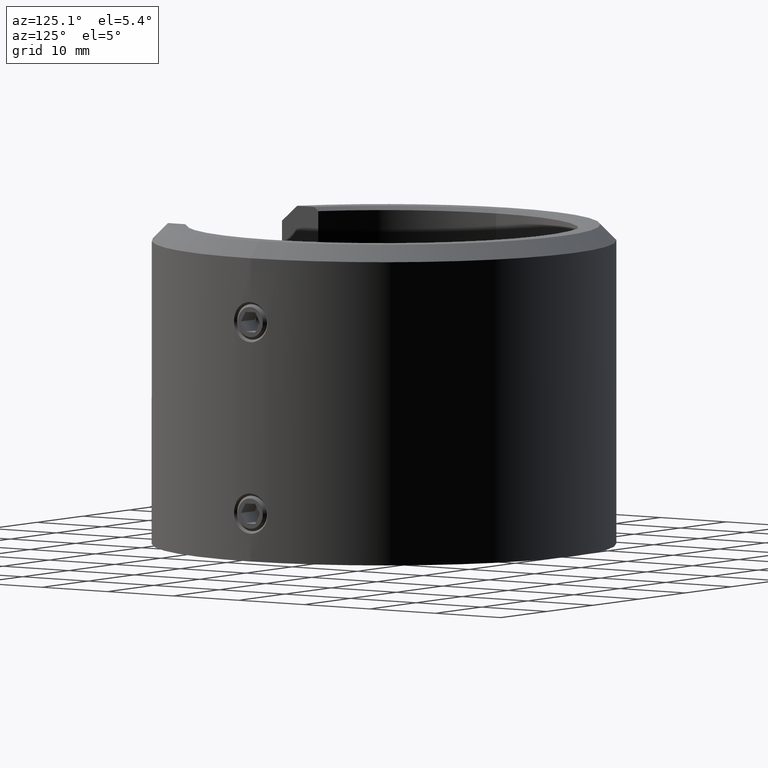
[diagram: clean part render]
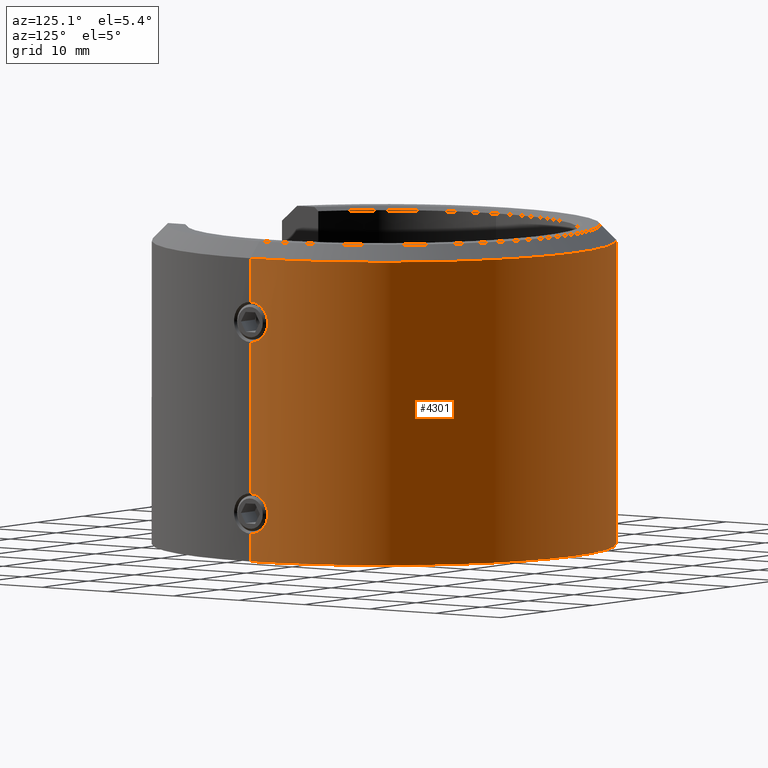
[diagram: same view with one face highlighted and labeled with its STEP entity id]
A machine part, auxiliary view. The second image highlights one B-rep face of the part: STEP entity #4301.
In plain terms, the highlighted cylindrical surface (partial cylindrical patch) has radius 29 mm, axis along (-0, -0, -1).
Its self-contained STEP definition (entity closure, byte-faithful):
#277 = CARTESIAN_POINT ( 'NONE',  ( 28.95070325850427700, 1.694372736664788500, -12.10099497149039000 ) ) ;
#555 = DIRECTION ( 'NONE',  ( 1.000000000000000000, 0.0000000000000000000, 0.0000000000000000000 ) ) ;
#907 = ORIENTED_EDGE ( 'NONE', *, *, #5354, .T. ) ;
#1137 = ORIENTED_EDGE ( 'NONE', *, *, #8854, .T. ) ;
#1820 = B_SPLINE_CURVE_WITH_KNOTS ( 'NONE', 3,
 ( #4042, #19688, #1968, #6363, #22014, #26396 ),
 .UNSPECIFIED., .F., .F.,
 ( 4, 2, 4 ),
 ( 0.4998276598278350600, 0.4999138299139175300, 0.5000000000000000000 ),
 .UNSPECIFIED. ) ;
#1968 = CARTESIAN_POINT ( 'NONE',  ( 28.99999998886649500, 0.0009279031094995492900, 12.52163524237534500 ) ) ;
#2059 = CARTESIAN_POINT ( 'NONE',  ( 28.97810411626767600, 1.137255901282815800, -11.73428274578081300 ) ) ;
#2152 = CARTESIAN_POINT ( 'NONE',  ( 28.91474639818237000, 2.224013585481232600, -15.26372302458311700 ) ) ;
#2157 = CARTESIAN_POINT ( 'NONE',  ( 28.99999994433047200, 0.001855826880077852900, -11.47836523612868500 ) ) ;
#2171 = LINE ( 'NONE', #28346, #8120 ) ;
#2249 = CARTESIAN_POINT ( 'NONE',  ( 28.97298592122339400, 1.289019628231691500, -16.20408996501297900 ) ) ;
#2442 = CARTESIAN_POINT ( 'NONE',  ( 28.91468287827641200, 2.224806800264385900, -12.73776894651643600 ) ) ;
#2543 = CARTESIAN_POINT ( 'NONE',  ( 28.88655163827969500, 2.562642083987400500, -14.16650311797027800 ) ) ;
#3641 = EDGE_CURVE ( 'NONE', #19587, #26552, #13382, .T. ) ;
#3822 = CARTESIAN_POINT ( 'NONE',  ( 28.97810411626428000, 1.137255901382695500, 12.26571725417542200 ) ) ;
#4042 = CARTESIAN_POINT ( 'NONE',  ( 28.99999999997066200, 2.646617529216354900E-012, 12.52163537449077100 ) ) ;
#4116 = CARTESIAN_POINT ( 'NONE',  ( 28.99996778157294500, 0.3370280696063509000, 12.52128354010413200 ) ) ;
#4219 = CARTESIAN_POINT ( 'NONE',  ( 29.00000000000000400, 0.3344056857971642300, 7.478364075911057900 ) ) ;
#4228 = DIRECTION ( 'NONE',  ( 0.0000000000000000000, 0.0000000000000000000, 1.000000000000000000 ) ) ;
#4301 = ADVANCED_FACE ( 'NONE', ( #11240 ), #16840, .T. ) ;
#4501 = CARTESIAN_POINT ( 'NONE',  ( 28.88654095897565800, 2.562762461078379200, -13.67044519030777600 ) ) ;
#4695 = CARTESIAN_POINT ( 'NONE',  ( 28.89259654719126000, 2.496928719873789500, -13.34235906666526500 ) ) ;
#5354 = EDGE_CURVE ( 'NONE', #8104, #5941, #9130, .T. ) ;
#5397 = EDGE_CURVE ( 'NONE', #27210, #8104, #17828, .T. ) ;
#5941 = VERTEX_POINT ( 'NONE', #10800 ) ;
#5971 = VERTEX_POINT ( 'NONE', #20178 ) ;
#6063 = CARTESIAN_POINT ( 'NONE',  ( 28.88655163827969800, 2.562642083987400900, 9.833496882027741700 ) ) ;
#6159 = CARTESIAN_POINT ( 'NONE',  ( 28.88804714963799100, 2.545940195306829700, 9.668456398321714200 ) ) ;
#6252 = CARTESIAN_POINT ( 'NONE',  ( 28.89800250750352000, 2.430966818281633300, 9.185162510636542900 ) ) ;
#6257 = VERTEX_POINT ( 'NONE', #12400 ) ;
#6293 = DIRECTION ( 'NONE',  ( -0.0000000000000000000, -0.0000000000000000000, -1.000000000000000000 ) ) ;
#6363 = CARTESIAN_POINT ( 'NONE',  ( 28.99999994433047200, 0.001855826880075615800, 12.52163476387133800 ) ) ;
#6730 = CARTESIAN_POINT ( 'NONE',  ( 28.99999999999998900, 0.3344056855532963600, -16.52163592408893300 ) ) ;
#6816 = CARTESIAN_POINT ( 'NONE',  ( 28.99999999999999600, 3.725607703343061400E-015, -16.52163540244526600 ) ) ;
#7003 = VECTOR ( 'NONE', #17155, 1000.000000000000000 ) ;
#7394 = ORIENTED_EDGE ( 'NONE', *, *, #28684, .T. ) ;
#7713 = VERTEX_POINT ( 'NONE', #26333 ) ;
#8104 = VERTEX_POINT ( 'NONE', #10433 ) ;
#8120 = VECTOR ( 'NONE', #14973, 1000.000000000000000 ) ;
#8187 = EDGE_CURVE ( 'NONE', #7713, #20552, #27198, .T. ) ;
#8312 = CARTESIAN_POINT ( 'NONE',  ( 28.88654095897565800, 2.562762461078379200, 10.32955480969619300 ) ) ;
#8396 = ORIENTED_EDGE ( 'NONE', *, *, #3641, .T. ) ;
#8406 = CARTESIAN_POINT ( 'NONE',  ( 28.92852626385320400, 2.036949656018110800, 8.460916172343452500 ) ) ;
#8793 = CARTESIAN_POINT ( 'NONE',  ( 28.92852626385637300, 2.036949655975246900, -15.53908382771963800 ) ) ;
#8854 = EDGE_CURVE ( 'NONE', #5971, #27210, #10622, .T. ) ;
#8889 = CARTESIAN_POINT ( 'NONE',  ( 29.00000000000000000, 3.551475717527324000E-015, 20.00000000000000000 ) ) ;
#9130 = CIRCLE ( 'NONE', #13333, 29.00000000000000000 ) ;
#10433 = CARTESIAN_POINT ( 'NONE',  ( 29.00000000000000000, 3.551475717527324000E-015, -20.00000000000000000 ) ) ;
#10622 = B_SPLINE_CURVE_WITH_KNOTS ( 'NONE', 3,
 ( #24174, #13084, #28654, #2059, #11191, #15850, #277, #20138, #24534, #2442, #18081, #4695, #4501, #2543, #15564, #26585, #22101, #13353, #2152, #8793, #13254, #17702, #2249, #19965, #6730, #6816 ),
 .UNSPECIFIED., .F., .F.,
 ( 4, 2, 2, 2, 2, 2, 2, 2, 2, 2, 2, 2, 4 ),
 ( 0.5000000000000000000, 0.5625000000000001100, 0.5937500000000002200, 0.6250000000000002200, 0.6562500000000003300, 0.6875000000000004400, 0.7500000000000002200, 0.7812500000000003300, 0.8125000000000004400, 0.8437500000000004400, 0.8750000000000004400, 0.9375000000000002200, 1.000000000000000000 ),
 .UNSPECIFIED. ) ;
#10719 = CARTESIAN_POINT ( 'NONE',  ( 28.99381238240432500, 0.6740327640921671700, 12.45499271122933600 ) ) ;
#10800 = CARTESIAN_POINT ( 'NONE',  ( -29.00000000000000000, 0.0000000000000000000, -20.00000000000000000 ) ) ;
#10928 = CARTESIAN_POINT ( 'NONE',  ( 28.99999999997066500, 2.633994630460776600E-012, -11.47836462550925600 ) ) ;
#10944 = DIRECTION ( 'NONE',  ( -0.0000000000000000000, -0.0000000000000000000, -1.000000000000000000 ) ) ;
#11191 = CARTESIAN_POINT ( 'NONE',  ( 28.97178799525163800, 1.286462123786927800, -11.81287434999528200 ) ) ;
#11240 = FACE_OUTER_BOUND ( 'NONE', #19797, .T. ) ;
#11375 = DIRECTION ( 'NONE',  ( -0.0000000000000000000, -0.0000000000000000000, -1.000000000000000000 ) ) ;
#12400 = CARTESIAN_POINT ( 'NONE',  ( 28.99999999997066500, 2.633994630460776600E-012, -11.47836462550925600 ) ) ;
#12629 = CARTESIAN_POINT ( 'NONE',  ( 0.0000000000000000000, 0.0000000000000000000, 20.00000000000000000 ) ) ;
#12783 = CARTESIAN_POINT ( 'NONE',  ( 28.89259654719180800, 2.496928719867046900, 10.65764093335671900 ) ) ;
#12880 = CARTESIAN_POINT ( 'NONE',  ( 28.95070325850256100, 1.694372736692226800, 11.89900502847962500 ) ) ;
#13075 = CARTESIAN_POINT ( 'NONE',  ( 28.92835916125378400, 2.039286023906310400, 11.53596375990405900 ) ) ;
#13084 = CARTESIAN_POINT ( 'NONE',  ( 28.99996778157294100, 0.3370280696065572900, -11.47871645988999100 ) ) ;
#13132 = AXIS2_PLACEMENT_3D ( 'NONE', #12629, #6293, #19219 ) ;
#13254 = CARTESIAN_POINT ( 'NONE',  ( 28.93601098192067400, 1.929061563449896400, -15.66811095088773500 ) ) ;
#13261 = VERTEX_POINT ( 'NONE', #24694 ) ;
#13333 = AXIS2_PLACEMENT_3D ( 'NONE', #26481, #4228, #15109 ) ;
#13353 = CARTESIAN_POINT ( 'NONE',  ( 28.90851580541707100, 2.302577365306048800, -15.11911433925701300 ) ) ;
#13382 = CIRCLE ( 'NONE', #24135, 29.00000000000000000 ) ;
#13616 = CARTESIAN_POINT ( 'NONE',  ( 28.99999986638995600, 0.002783771313339031800, -11.47836608530465900 ) ) ;
#13883 = DIRECTION ( 'NONE',  ( 0.0000000000000000000, 0.0000000000000000000, -1.000000000000000000 ) ) ;
#13953 = ORIENTED_EDGE ( 'NONE', *, *, #5397, .T. ) ;
#14087 = CARTESIAN_POINT ( 'NONE',  ( 29.00000000000000000, 3.551475717527324000E-015, 17.99999999999999300 ) ) ;
#14146 = ORIENTED_EDGE ( 'NONE', *, *, #14152, .F. ) ;
#14151 = LINE ( 'NONE', #19795, #16966 ) ;
#14152 = EDGE_CURVE ( 'NONE', #19587, #5941, #15022, .T. ) ;
#14973 = DIRECTION ( 'NONE',  ( -0.0000000000000000000, -0.0000000000000000000, -1.000000000000000000 ) ) ;
#15022 = LINE ( 'NONE', #26025, #7003 ) ;
#15097 = CARTESIAN_POINT ( 'NONE',  ( 28.99387452406784500, 0.6713604665796052400, 7.544302882037119900 ) ) ;
#15109 = DIRECTION ( 'NONE',  ( 1.000000000000000000, 0.0000000000000000000, 0.0000000000000000000 ) ) ;
#15290 = CARTESIAN_POINT ( 'NONE',  ( 28.99999999999999600, 3.725607703343061400E-015, 7.478364597554729300 ) ) ;
#15518 = ORIENTED_EDGE ( 'NONE', *, *, #23668, .T. ) ;
#15564 = CARTESIAN_POINT ( 'NONE',  ( 28.88804714963797700, 2.545940195306828400, -14.33154360167680300 ) ) ;
#15657 = CARTESIAN_POINT ( 'NONE',  ( 28.99999998886649500, 0.0009279031094973129100, -11.47836475762469100 ) ) ;
#15850 = CARTESIAN_POINT ( 'NONE',  ( 28.95806152406392900, 1.565297801146257300, -11.99660292854558100 ) ) ;
#15985 = ORIENTED_EDGE ( 'NONE', *, *, #23681, .T. ) ;
#16747 = ORIENTED_EDGE ( 'NONE', *, *, #22878, .T. ) ;
#16840 = CYLINDRICAL_SURFACE ( 'NONE', #13132, 29.00000000000000000 ) ;
#16950 = CARTESIAN_POINT ( 'NONE',  ( 28.99999986638995600, 0.002783771313339031800, 12.52163391469534500 ) ) ;
#16966 = VECTOR ( 'NONE', #10944, 1000.000000000000000 ) ;
#17133 = CARTESIAN_POINT ( 'NONE',  ( 28.95806152406200300, 1.565297801185394400, 12.00339707142275900 ) ) ;
#17155 = DIRECTION ( 'NONE',  ( -0.0000000000000000000, -0.0000000000000000000, -1.000000000000000000 ) ) ;
#17337 = CARTESIAN_POINT ( 'NONE',  ( 28.97298592121787700, 1.289019628394726600, 7.795910035041634600 ) ) ;
#17702 = CARTESIAN_POINT ( 'NONE',  ( 28.95818500887049400, 1.574662261464860000, -16.01640164099102000 ) ) ;
#17828 = LINE ( 'NONE', #8889, #22002 ) ;
#18081 = CARTESIAN_POINT ( 'NONE',  ( 28.90846518876380600, 2.303223284389885400, -12.88198657710052500 ) ) ;
#19219 = DIRECTION ( 'NONE',  ( -1.000000000000000000, 0.0000000000000000000, 0.0000000000000000000 ) ) ;
#19370 = CARTESIAN_POINT ( 'NONE',  ( 28.97178799525355300, 1.286462123747790000, 12.18712565003637000 ) ) ;
#19587 = VERTEX_POINT ( 'NONE', #23672 ) ;
#19672 = CARTESIAN_POINT ( 'NONE',  ( 28.93601098191540200, 1.929061563534042900, 8.331889049189078000 ) ) ;
#19688 = CARTESIAN_POINT ( 'NONE',  ( 29.00000000000000000, 0.0004639481119478211800, 12.52163535807002500 ) ) ;
#19762 = CARTESIAN_POINT ( 'NONE',  ( 28.91468287827582300, 2.224806800272330700, 11.26223105346009300 ) ) ;
#19795 = CARTESIAN_POINT ( 'NONE',  ( 29.00000000000000000, 3.551475717527324000E-015, 20.00000000000000000 ) ) ;
#19797 = EDGE_LOOP ( 'NONE', ( #8396, #7394, #15518, #27034, #16747, #15985, #1137, #13953, #907, #14146 ) ) ;
#19965 = CARTESIAN_POINT ( 'NONE',  ( 28.99387452406233100, 0.6713604667426412700, -16.45569711790827600 ) ) ;
#20138 = CARTESIAN_POINT ( 'NONE',  ( 28.93584701986239000, 1.931547404503096900, -12.33458682502403500 ) ) ;
#20178 = CARTESIAN_POINT ( 'NONE',  ( 28.99999986638995600, 0.002783771313339031800, -11.47836608530465900 ) ) ;
#20552 = VERTEX_POINT ( 'NONE', #25699 ) ;
#21611 = CARTESIAN_POINT ( 'NONE',  ( 28.95818500888101000, 1.574662261296564400, 7.983598358855356700 ) ) ;
#21724 = CARTESIAN_POINT ( 'NONE',  ( 28.91474639818552800, 2.224013585438368200, 8.736276975353805000 ) ) ;
#21969 = B_SPLINE_CURVE_WITH_KNOTS ( 'NONE', 3,
 ( #10928, #28659, #15657, #2157, #26672, #13616 ),
 .UNSPECIFIED., .F., .F.,
 ( 4, 2, 4 ),
 ( 0.4998276598278041400, 0.4999138299139021000, 0.5000000000000000000 ),
 .UNSPECIFIED. ) ;
#22002 = VECTOR ( 'NONE', #11375, 1000.000000000000000 ) ;
#22014 = CARTESIAN_POINT ( 'NONE',  ( 28.99999991062597700, 0.002322941554035287900, 12.52163439776428600 ) ) ;
#22101 = CARTESIAN_POINT ( 'NONE',  ( 28.89800250750215600, 2.430966818298250700, -14.81483748932990700 ) ) ;
#22878 = EDGE_CURVE ( 'NONE', #20552, #6257, #14151, .T. ) ;
#23668 = EDGE_CURVE ( 'NONE', #13261, #7713, #1820, .T. ) ;
#23672 = CARTESIAN_POINT ( 'NONE',  ( -29.00000000000000000, 0.0000000000000000000, 17.99999999999999300 ) ) ;
#23681 = EDGE_CURVE ( 'NONE', #6257, #5971, #21969, .T. ) ;
#24055 = CARTESIAN_POINT ( 'NONE',  ( 28.90846518876353200, 2.303223284393256500, 11.11801342288848300 ) ) ;
#24135 = AXIS2_PLACEMENT_3D ( 'NONE', #27233, #13883, #555 ) ;
#24174 = CARTESIAN_POINT ( 'NONE',  ( 28.99999986638995600, 0.002783771313339031800, -11.47836608530465900 ) ) ;
#24248 = CARTESIAN_POINT ( 'NONE',  ( 28.89374211619773200, 2.480472963055122500, 9.345331359051574100 ) ) ;
#24534 = CARTESIAN_POINT ( 'NONE',  ( 28.92835916125319400, 2.039286023914256500, -12.46403624011941200 ) ) ;
#24694 = CARTESIAN_POINT ( 'NONE',  ( 28.99999999997066200, 2.646617529216354900E-012, 12.52163537449077100 ) ) ;
#25699 = CARTESIAN_POINT ( 'NONE',  ( 28.99999999999999600, 3.725607703343061400E-015, 7.478364597554729300 ) ) ;
#26025 = CARTESIAN_POINT ( 'NONE',  ( -29.00000000000000000, 0.0000000000000000000, 20.00000000000000000 ) ) ;
#26101 = CARTESIAN_POINT ( 'NONE',  ( 28.93584701986413100, 1.931547404475660600, 11.66541317500595600 ) ) ;
#26333 = CARTESIAN_POINT ( 'NONE',  ( 28.99999986638995600, 0.002783771313339031800, 12.52163391469534500 ) ) ;
#26396 = CARTESIAN_POINT ( 'NONE',  ( 28.99999986638995600, 0.002783771313339031800, 12.52163391469534500 ) ) ;
#26481 = CARTESIAN_POINT ( 'NONE',  ( 0.0000000000000000000, 0.0000000000000000000, -20.00000000000000000 ) ) ;
#26552 = VERTEX_POINT ( 'NONE', #14087 ) ;
#26585 = CARTESIAN_POINT ( 'NONE',  ( 28.89374211619773200, 2.480472963055123900, -14.65466864094990600 ) ) ;
#26672 = CARTESIAN_POINT ( 'NONE',  ( 28.99999991062598100, 0.002322941553952327000, -11.47836560223572600 ) ) ;
#27034 = ORIENTED_EDGE ( 'NONE', *, *, #8187, .T. ) ;
#27198 = B_SPLINE_CURVE_WITH_KNOTS ( 'NONE', 3,
 ( #16950, #4116, #10719, #3822, #19370, #17133, #12880, #26101, #13075, #19762, #24055, #12783, #8312, #6063, #6159, #24248, #6252, #28447, #21724, #8406, #19672, #21611, #17337, #15097, #4219, #15290 ),
 .UNSPECIFIED., .F., .F.,
 ( 4, 2, 2, 2, 2, 2, 2, 2, 2, 2, 2, 2, 4 ),
 ( 0.5000000000000000000, 0.5625000000000000000, 0.5937500000000000000, 0.6250000000000000000, 0.6562500000000000000, 0.6875000000000000000, 0.7499999999999996700, 0.7812499999999995600, 0.8124999999999995600, 0.8437499999999996700, 0.8749999999999996700, 0.9374999999999997800, 1.000000000000000000 ),
 .UNSPECIFIED. ) ;
#27210 = VERTEX_POINT ( 'NONE', #27221 ) ;
#27221 = CARTESIAN_POINT ( 'NONE',  ( 28.99999999999999600, 3.725607703343061400E-015, -16.52163540244526600 ) ) ;
#27233 = CARTESIAN_POINT ( 'NONE',  ( 0.0000000000000000000, 0.0000000000000000000, 17.99999999999999300 ) ) ;
#28346 = CARTESIAN_POINT ( 'NONE',  ( 29.00000000000000000, 3.551475717527324000E-015, 20.00000000000000000 ) ) ;
#28447 = CARTESIAN_POINT ( 'NONE',  ( 28.90851580541571400, 2.302577365322666700, 8.880885660776535000 ) ) ;
#28654 = CARTESIAN_POINT ( 'NONE',  ( 28.99381238239755000, 0.6740327642919281500, -11.54500728885818700 ) ) ;
#28659 = CARTESIAN_POINT ( 'NONE',  ( 29.00000000000000000, 0.0004639481119380520900, -11.47836464193002100 ) ) ;
#28684 = EDGE_CURVE ( 'NONE', #26552, #13261, #2171, .T. ) ;